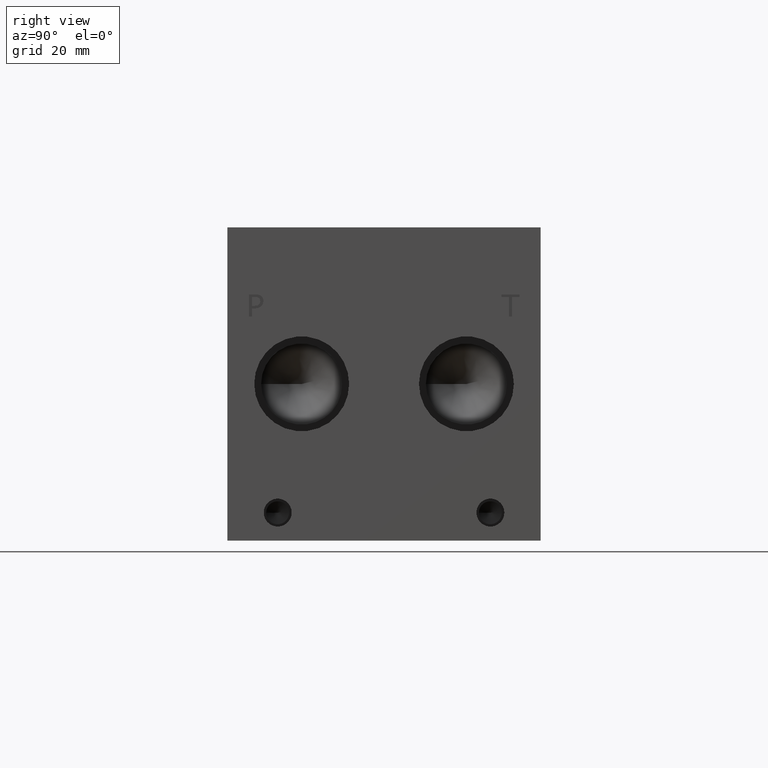
[diagram: clean part render]
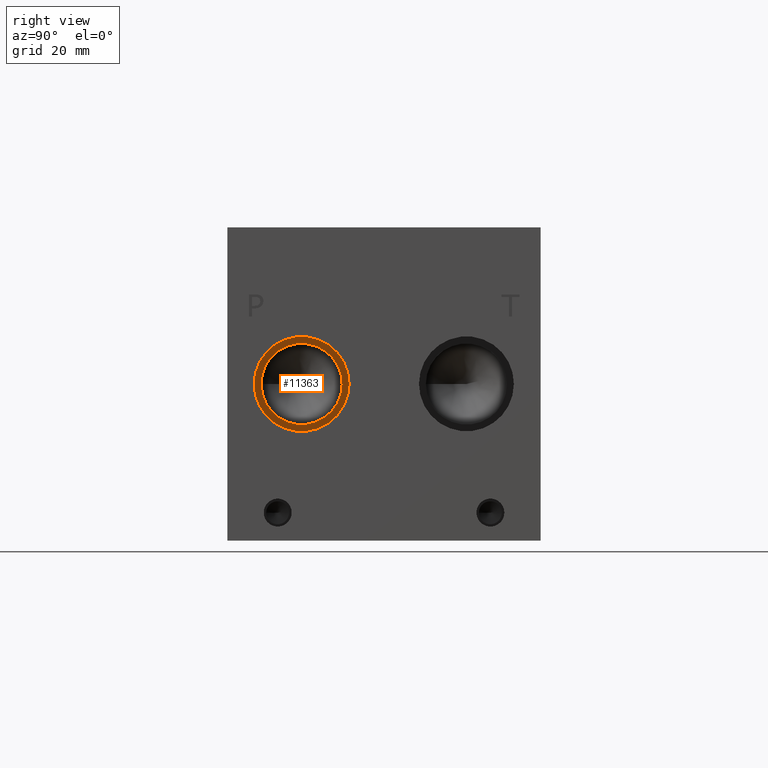
[diagram: same view with one face highlighted and labeled with its STEP entity id]
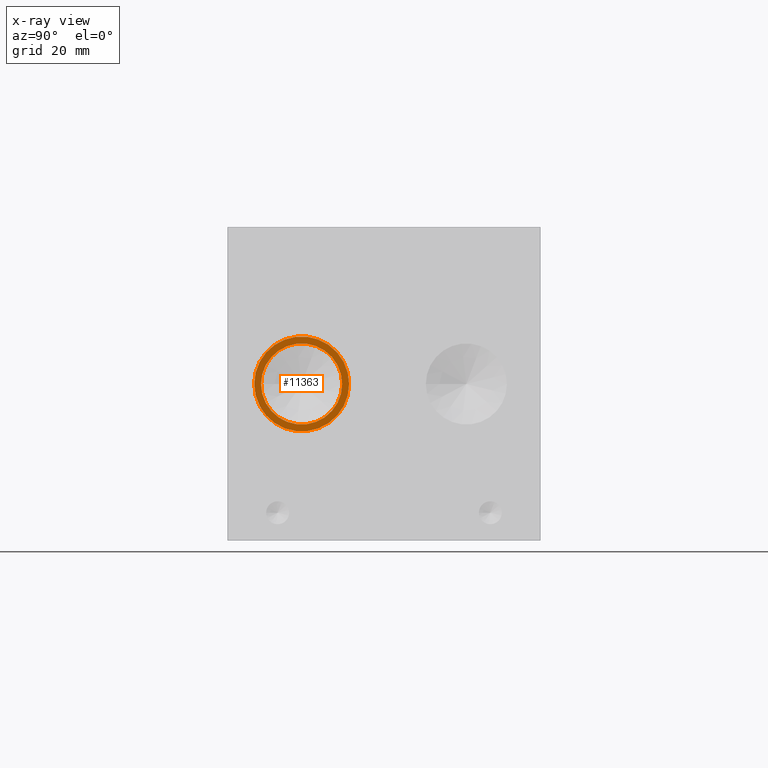
[diagram: x-ray of the same camera — body ghosted, the highlighted face saturated]
A machine part, right view. The second image highlights one B-rep face of the part: STEP entity #11363.
The next image is the same camera in x-ray: the body ghosted, the highlighted face saturated — about 0% of this face is hidden behind the body in this view.
In plain terms, the highlighted planar face has unit normal (1, 0, 0).
Its self-contained STEP definition (entity closure, byte-faithful):
#161=CIRCLE('',#11873,13.462);
#162=CIRCLE('',#11874,13.462);
#163=CIRCLE('',#11875,11.5062);
#809=FACE_BOUND('',#2000,.T.);
#1349=FACE_OUTER_BOUND('',#1999,.T.);
#1999=EDGE_LOOP('',(#9667,#9668));
#2000=EDGE_LOOP('',(#9669));
#5204=VERTEX_POINT('',#19253);
#5205=VERTEX_POINT('',#19254);
#5206=VERTEX_POINT('',#19257);
#6737=EDGE_CURVE('',#5204,#5205,#161,.T.);
#6738=EDGE_CURVE('',#5205,#5204,#162,.T.);
#6739=EDGE_CURVE('',#5206,#5206,#163,.T.);
#9667=ORIENTED_EDGE('',*,*,#6737,.T.);
#9668=ORIENTED_EDGE('',*,*,#6738,.T.);
#9669=ORIENTED_EDGE('',*,*,#6739,.F.);
#10371=PLANE('',#11872);
#11363=ADVANCED_FACE('',(#1349,#809),#10371,.T.);
#11872=AXIS2_PLACEMENT_3D('',#19252,#13922,#13923);
#11873=AXIS2_PLACEMENT_3D('',#19255,#13924,#13925);
#11874=AXIS2_PLACEMENT_3D('',#19256,#13926,#13927);
#11875=AXIS2_PLACEMENT_3D('',#19258,#13928,#13929);
#13922=DIRECTION('center_axis',(1.,0.,0.));
#13923=DIRECTION('ref_axis',(0.,1.,0.));
#13924=DIRECTION('center_axis',(1.,0.,0.));
#13925=DIRECTION('ref_axis',(0.,1.,0.));
#13926=DIRECTION('center_axis',(1.,0.,0.));
#13927=DIRECTION('ref_axis',(0.,1.,0.));
#13928=DIRECTION('center_axis',(1.,0.,0.));
#13929=DIRECTION('ref_axis',(0.,1.,0.));
#19252=CARTESIAN_POINT('Origin',(149.2504,21.082,44.45));
#19253=CARTESIAN_POINT('',(149.2504,34.544,44.45));
#19254=CARTESIAN_POINT('',(149.2504,7.62,44.45));
#19255=CARTESIAN_POINT('Origin',(149.2504,21.082,44.45));
#19256=CARTESIAN_POINT('Origin',(149.2504,21.082,44.45));
#19257=CARTESIAN_POINT('',(149.2504,9.5758,44.45));
#19258=CARTESIAN_POINT('Origin',(149.2504,21.082,44.45));